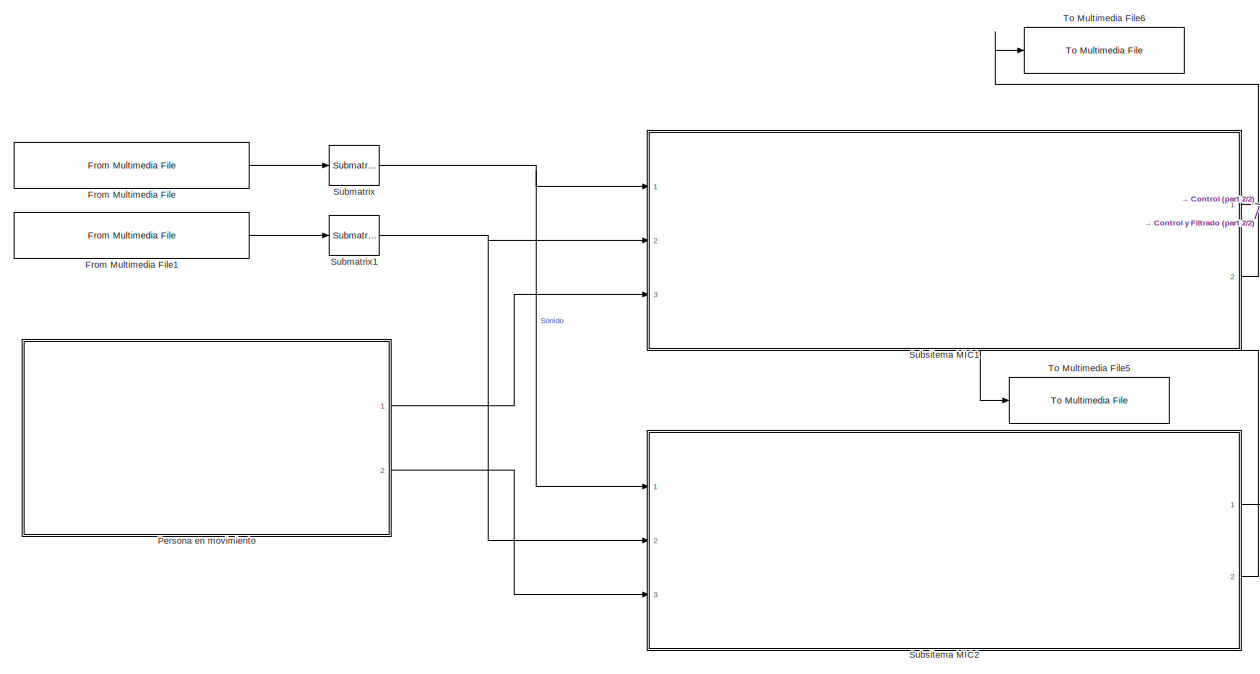
[diagram: root canvas - part 1/2, left side, full height]
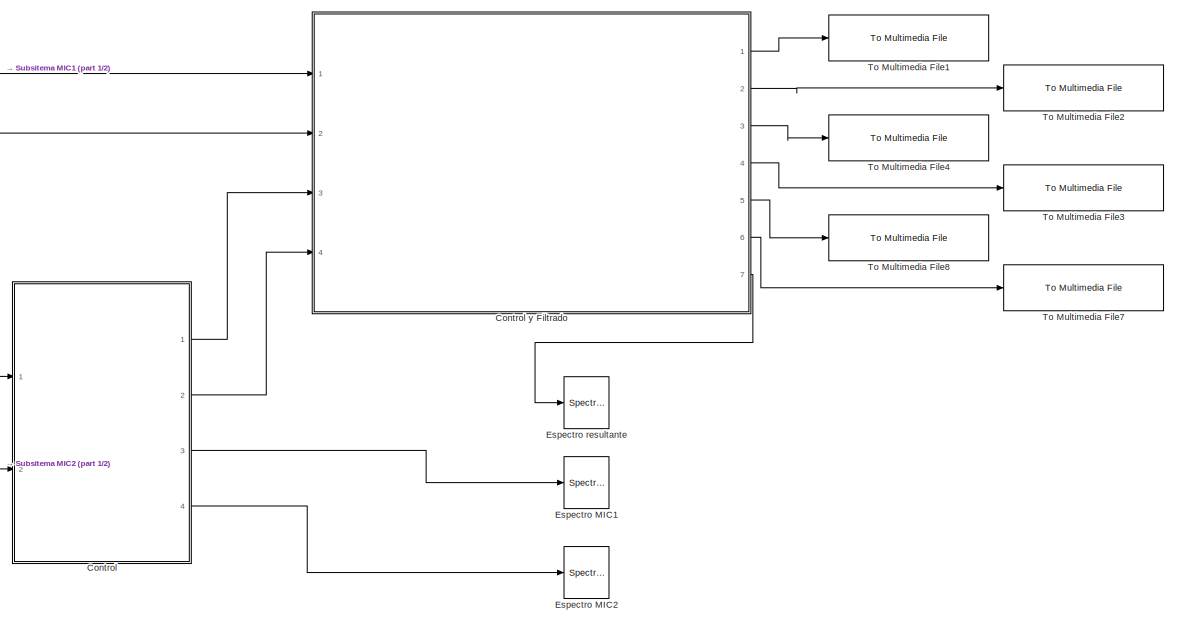
[diagram: root canvas - part 2/2, right side, full height]
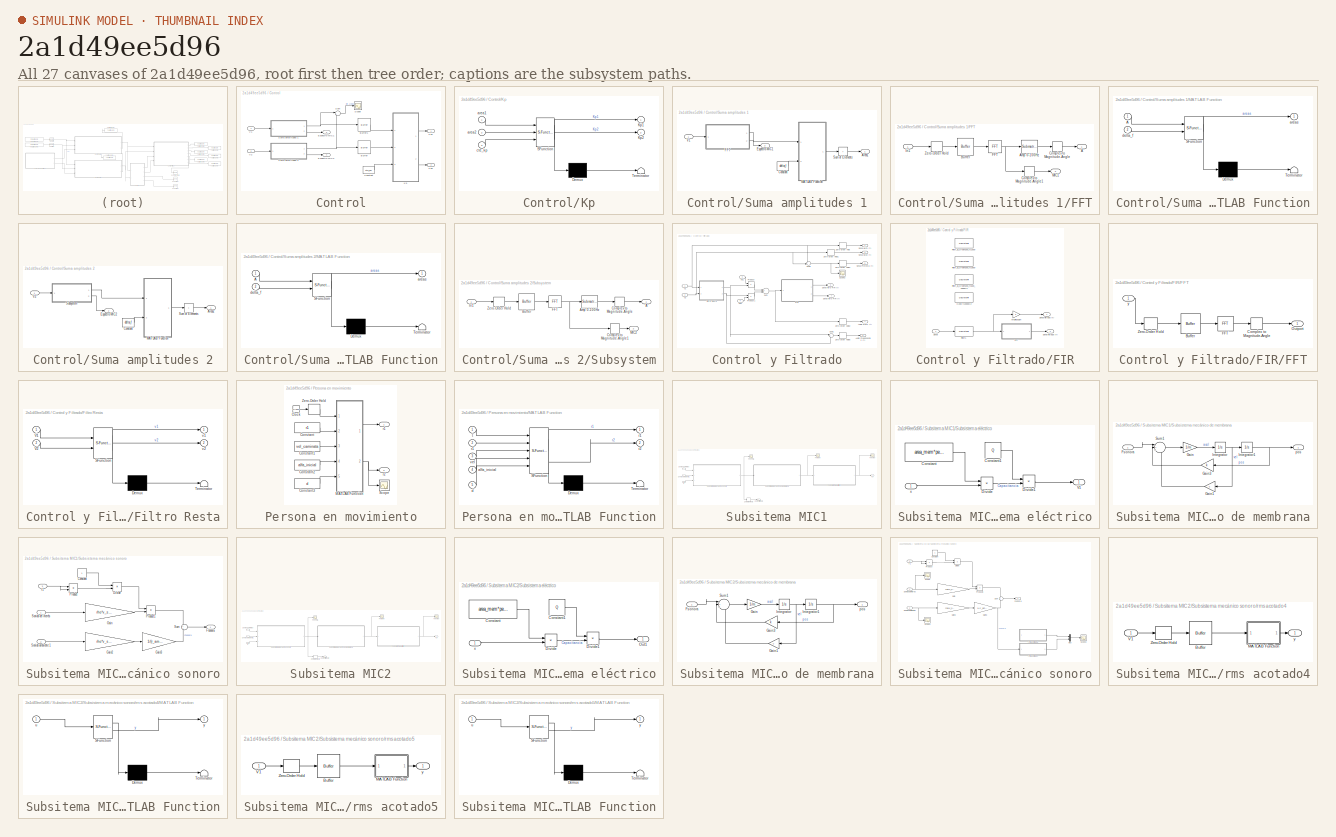
[diagram: thumbnail index - all 27 canvases of the model, root first then tree order]
MODEL slx_2a1d49ee5d96
KIND model
CONFIG AbsTol = auto
CONFIG EnableMultiTasking = off
CONFIG FixedStep = auto
CONFIG MaxStep = auto
CONFIG MinStep = auto
CONFIG RelTol = auto
CONFIG SampleTimeConstraint = Unconstrained
CONFIG Solver = VariableStepAuto
CONFIG SolverName = VariableStepAuto
CONFIG StartTime = 0.0
CONFIG StopTime = 3
BLOCK [SubSystem] Control
  Ports = [2, 4]
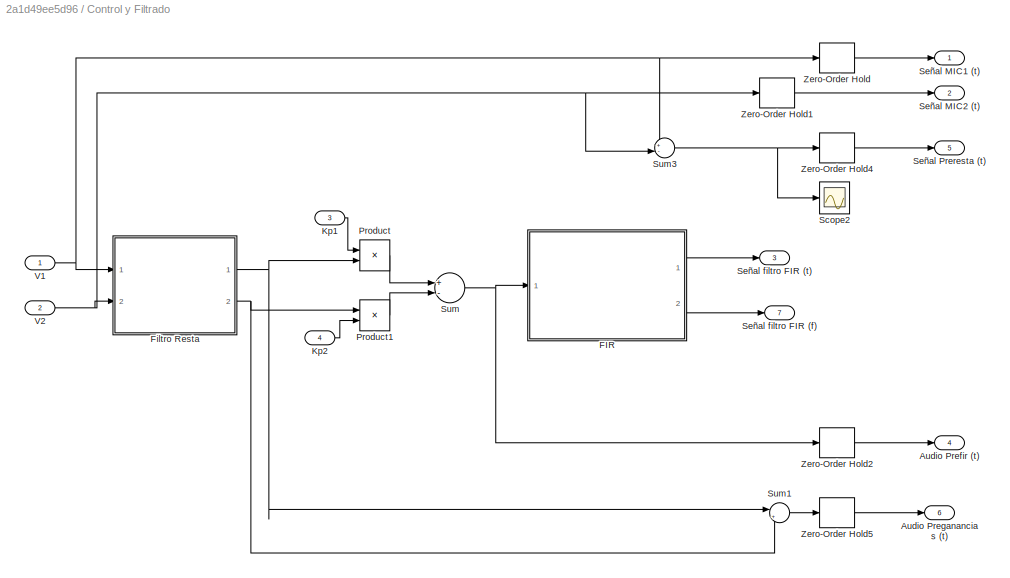
BLOCK [SubSystem] Control y Filtrado
  Ports = [4, 7]
BLOCK [Outport] Control y Filtrado/Audio Prefir (t)
  Port = 4
BLOCK [Outport] Control y Filtrado/Audio Preganancias (t)
  Port = 6
BLOCK [SubSystem] Control y Filtrado/FIR
  Ports = [1, 2]
BLOCK [Gain] Control y Filtrado/FIR/Amplificación
  Gain = 5
BLOCK [SubSystem] Control y Filtrado/FIR/FFT
  Ports = [1, 1]
BLOCK [Buffer] Control y Filtrado/FIR/FFT/Buffer
  N = 4410
  OutputFrames = off
BLOCK [ComplexToMagnitudeAngle] Control y Filtrado/FIR/FFT/Complex to Magnitude-Angle
  Output = Magnitude
  Ports = [1, 1]
BLOCK [Reference] Control y Filtrado/FIR/FFT/FFT  REF=dspxfrm3/FFT
  Ports = [1, 1]
  SourceBlock = dspxfrm3/FFT
  SourceType = FFT
BLOCK [Outport] Control y Filtrado/FIR/FFT/Outport
BLOCK [ZeroOrderHold] Control y Filtrado/FIR/FFT/Zero-Order Hold
  SampleTime = zoh_freq
BLOCK [Inport] Control y Filtrado/FIR/FFT/y
BLOCK [DiscreteFir] Control y Filtrado/FIR/Filter1
  Coefficients = [0 -2.46968087486229999e-06 -3.07570330301983584e-05 -0.000118398297516965302 -0.000298367075036484037 -0.000596227803309950849 -0.00102003077952711506 -0.00154756625881359144 -0.00211289076768585247 -0.00259518747306043901 -0.00281365562212182018 -0.00253195194747434741 -0.00147460264563965674 0.00064414461322387991 0.00408104805501018075 0.00901875177176652762 0.0155214581908035953 0.02349910102...<+745ch>
  InputPortMap = u0
  OutputPortMap = o0
  Ports = [1, 1]
  Tag = BlockMethodSubSystem
BLOCK [DiscreteFir] Control y Filtrado/FIR/Filter_B_Orden200_fc1500
  Coefficients = [0 2.11514125222930549e-07 1.00093934765138096e-06 2.50662436979156886e-06 4.71763254290821587e-06 7.45535130819729324e-06 1.03710140877794857e-05 1.2960590087806268e-05 1.45973519410186672e-05 1.45811762675124996e-05 1.22023273134778345e-05 6.81618827244323951e-06 -2.07578339154207704e-06 -1.47446077930910027e-05 -3.11583144423782112e-05 -5.09193211148811369e-05 -7.32215020803920553e-05 -9.683328...<+4311ch>
  InputPortMap = u0
  OutputPortMap = o0
  Ports = [1, 1]
  Tag = BlockMethodSubSystem
BLOCK [DiscreteFir] Control y Filtrado/FIR/Filter_B_Orden200_fc1800
  Coefficients = [0 2.11514125222930549e-07 1.00093934765138096e-06 2.50662436979156886e-06 4.71763254290821587e-06 7.45535130819729324e-06 1.03710140877794857e-05 1.2960590087806268e-05 1.45973519410186672e-05 1.45811762675124996e-05 1.22023273134778345e-05 6.81618827244323951e-06 -2.07578339154207704e-06 -1.47446077930910027e-05 -3.11583144423782112e-05 -5.09193211148811369e-05 -7.32215020803920553e-05 -9.683328...<+4311ch>
  InputPortMap = u0
  OutputPortMap = o0
  Ports = [1, 1]
  Tag = BlockMethodSubSystem
BLOCK [DiscreteFir] Control y Filtrado/FIR/Filter_B_Orden200_fc500_1600Hz
  Coefficients = [0 -3.55324752461809841e-07 -1.14041164662054229e-06 -1.86555151808696453e-06 -1.99844780883798536e-06 -1.03117503681064552e-06 1.45062710751347741e-06 5.70289528973608542e-06 1.17693159029814948e-05 1.94448656927964283e-05 2.82621895124256615e-05 3.75049240470417836e-05 4.62502611344708104e-05 5.34408510414543662e-05 5.79836863954314837e-05 5.88710269009623936e-05 5.53158980566520483e-05 4.689241...<+4287ch>
  InputPortMap = u0
  OutputPortMap = o0
  Ports = [1, 1]
  Tag = BlockMethodSubSystem
BLOCK [DiscreteFir] Control y Filtrado/FIR/H200 fc2000Hz
  Coefficients = [-5.56928887965323996e-05 1.65011438245537004e-05 8.97404129389855278e-05 0.000159235323802665862 0.00022009162972417537 0.000267507778546905491 0.000297028076662561244 0.00030485366062257119 0.000288200030555739591 0.000245675511305965986 0.000177641669329940406 8.6506699720296273e-05 -2.31018469780051173e-05 -0.00014433637834937926 -0.000268342086729793134 -0.000384707364236210015 -0.00048215215...<+4331ch>
  InputPortMap = u0
  OutputPortMap = o0
  Ports = [1, 1]
  Tag = BlockMethodSubSystem
BLOCK [Inport] Control y Filtrado/FIR/Señal
BLOCK [Outport] Control y Filtrado/FIR/Señal filtrada (f)
  Port = 2
BLOCK [Outport] Control y Filtrado/FIR/Señal filtrada (t)
BLOCK [SubSystem] Control y Filtrado/Filtro Resta
  ErrorFcn = Stateflow.Translate.translate
  PermitHierarchicalResolution = ExplicitOnly
  Ports = [2, 2]
  SFBlockType = MATLAB Function
  TreatAsAtomicUnit = on
BLOCK [Demux] Control y Filtrado/Filtro Resta/ Demux 
  Outputs = 1
  Ports = [1, 1]
BLOCK [S-Function] Control y Filtrado/Filtro Resta/ SFunction 
  EnableBusSupport = on
  FunctionName = sf_sfun
  PortCounts = [2 3]
  Ports = [2, 3]
  SFcnIsStateOwnerBlock = off
  SFunctionDeploymentMode = off
  Tag = Stateflow S-Function Proyecto_R2018a 1
BLOCK [Terminator] Control y Filtrado/Filtro Resta/ Terminator 
BLOCK [Inport] Control y Filtrado/Filtro Resta/V1
BLOCK [Inport] Control y Filtrado/Filtro Resta/V2
  Port = 2
BLOCK [Outport] Control y Filtrado/Filtro Resta/v1
BLOCK [Outport] Control y Filtrado/Filtro Resta/v2
  Port = 2
BLOCK [Inport] Control y Filtrado/Kp1
  Port = 3
BLOCK [Inport] Control y Filtrado/Kp2
  Port = 4
BLOCK [Product] Control y Filtrado/Product
  Ports = [2, 1]
BLOCK [Product] Control y Filtrado/Product1
  Ports = [2, 1]
BLOCK [Scope] Control y Filtrado/Scope2
  Floating = off
  NumInputPorts = 1
  Ports = [1]
  ScopeSpecificationString = Simulink.scopes.TimeScopeBlockCfg('CurrentConfiguration', extmgr.ConfigurationSet(extmgr.Configuration('Core','General UI',true),extmgr.Configuration('Core','Source UI',true),extmgr.Configuration('Sources','WiredSimulink',true,'DataLoggingVariableName','ScopeData1'),extmgr.Configuration('Visuals','Time Domain',true,'SerializedDisplays',{struct('MinYLimReal','-0.78692','MaxYLimReal','0.80622','YLab...<+1423ch>
BLOCK [Outport] Control y Filtrado/Señal MIC1 (t)
BLOCK [Outport] Control y Filtrado/Señal MIC2 (t)
  Port = 2
BLOCK [Outport] Control y Filtrado/Señal Preresta (t)
  Port = 5
BLOCK [Outport] Control y Filtrado/Señal filtro FIR (f)
  Port = 7
BLOCK [Outport] Control y Filtrado/Señal filtro FIR (t)
  Port = 3
BLOCK [Sum] Control y Filtrado/Sum
  Inputs = +-
  Ports = [2, 1]
BLOCK [Sum] Control y Filtrado/Sum1
  Inputs = |+-
  Ports = [2, 1]
BLOCK [Sum] Control y Filtrado/Sum3
  Inputs = +-|
  Ports = [2, 1]
BLOCK [Inport] Control y Filtrado/V1
BLOCK [Inport] Control y Filtrado/V2
  Port = 2
BLOCK [ZeroOrderHold] Control y Filtrado/Zero-Order Hold
  SampleTime = 1/fs
BLOCK [ZeroOrderHold] Control y Filtrado/Zero-Order Hold1
  SampleTime = 1/fs
BLOCK [ZeroOrderHold] Control y Filtrado/Zero-Order Hold2
  SampleTime = 1/fs
BLOCK [ZeroOrderHold] Control y Filtrado/Zero-Order Hold4
  SampleTime = 1/44100
BLOCK [ZeroOrderHold] Control y Filtrado/Zero-Order Hold5
  SampleTime = 1/fs
BLOCK [Buffer] Control/Buffer
  N = 10
  OutputFrames = off
  V = 9
BLOCK [Buffer] Control/Buffer1
  N = 10
  OutputFrames = off
  V = 9
BLOCK [Constant] Control/Constant
  Value = cte_kp
BLOCK [Outport] Control/Espectro MIC1
  Port = 3
BLOCK [Outport] Control/Espectro MIC2
  Port = 4
BLOCK [SubSystem] Control/Kp
  ErrorFcn = Stateflow.Translate.translate
  PermitHierarchicalResolution = ExplicitOnly
  Ports = [3, 2]
  SFBlockType = MATLAB Function
  TreatAsAtomicUnit = on
BLOCK [Demux] Control/Kp/ Demux 
  Outputs = 1
  Ports = [1, 1]
BLOCK [S-Function] Control/Kp/ SFunction 
  EnableBusSupport = on
  FunctionName = sf_sfun
  PortCounts = [3 3]
  Ports = [3, 3]
  SFcnIsStateOwnerBlock = off
  SFunctionDeploymentMode = off
  Tag = Stateflow S-Function Proyecto_R2018a 11
BLOCK [Terminator] Control/Kp/ Terminator 
BLOCK [Outport] Control/Kp/Kp1
BLOCK [Outport] Control/Kp/Kp2
  Port = 2
BLOCK [Inport] Control/Kp/area1
BLOCK [Inport] Control/Kp/area2
  Port = 2
BLOCK [Inport] Control/Kp/cte_kp
  Port = 3
BLOCK [Outport] Control/Kp1
BLOCK [Outport] Control/Kp2
  Port = 2
BLOCK [Scope] Control/Scope
  Floating = off
  NumInputPorts = 1
  Ports = [1]
  ScopeSpecificationString = Simulink.scopes.TimeScopeBlockCfg('CurrentConfiguration', extmgr.ConfigurationSet(extmgr.Configuration('Core','General UI',true),extmgr.Configuration('Core','Source UI',true),extmgr.Configuration('Sources','WiredSimulink',true,'DataLoggingVariableName','ScopeData2'),extmgr.Configuration('Visuals','Time Domain',true,'SerializedDisplays',{struct('MinYLimReal','-1439.47469','MaxYLimReal','404.61958',...<+1455ch>
BLOCK [Sum] Control/Sum
  Inputs = |+-
  Ports = [2, 1]
BLOCK [SubSystem] Control/Suma amplitudes 1
  Ports = [1, 2]
BLOCK [Outport] Control/Suma amplitudes 1/Area1
BLOCK [Constant] Control/Suma amplitudes 1/Constant
  Value = delta_f
BLOCK [Outport] Control/Suma amplitudes 1/Espectro MIC1
  Port = 2
BLOCK [SubSystem] Control/Suma amplitudes 1/FFT
  Ports = [1, 2]
BLOCK [Outport] Control/Suma amplitudes 1/FFT/A
BLOCK [Reference] Control/Suma amplitudes 1/FFT/Amp 0-100Hz  REF=dspmtrx3/Submatrix
  Ports = [1, 1]
  SourceBlock = dspmtrx3/Submatrix
  SourceType = Submatrix
BLOCK [Buffer] Control/Suma amplitudes 1/FFT/Buffer
  N = ventana_fft
  OutputFrames = off
  V = ventana_fft_analisis-1
BLOCK [ComplexToMagnitudeAngle] Control/Suma amplitudes 1/FFT/Complex to Magnitude-Angle
  Output = Magnitude
  Ports = [1, 1]
BLOCK [ComplexToMagnitudeAngle] Control/Suma amplitudes 1/FFT/Complex to Magnitude-Angle1
  Output = Magnitude
  Ports = [1, 1]
BLOCK [Reference] Control/Suma amplitudes 1/FFT/FFT  REF=dspxfrm3/FFT
  Ports = [1, 1]
  SourceBlock = dspxfrm3/FFT
  SourceType = FFT
BLOCK [Inport] Control/Suma amplitudes 1/FFT/In1
BLOCK [Outport] Control/Suma amplitudes 1/FFT/MIC1
  Port = 2
BLOCK [ZeroOrderHold] Control/Suma amplitudes 1/FFT/Zero-Order Hold
  SampleTime = zoh_freq
BLOCK [SubSystem] Control/Suma amplitudes 1/MATLAB Function
  ErrorFcn = Stateflow.Translate.translate
  PermitHierarchicalResolution = ExplicitOnly
  Ports = [2, 1]
  SFBlockType = MATLAB Function
  TreatAsAtomicUnit = on
BLOCK [Demux] Control/Suma amplitudes 1/MATLAB Function/ Demux 
  Outputs = 1
  Ports = [1, 1]
BLOCK [S-Function] Control/Suma amplitudes 1/MATLAB Function/ SFunction 
  EnableBusSupport = on
  FunctionName = sf_sfun
  PortCounts = [2 2]
  Ports = [2, 2]
  SFcnIsStateOwnerBlock = off
  SFunctionDeploymentMode = off
  Tag = Stateflow S-Function Proyecto_R2018a 15
BLOCK [Terminator] Control/Suma amplitudes 1/MATLAB Function/ Terminator 
BLOCK [Inport] Control/Suma amplitudes 1/MATLAB Function/A
BLOCK [Outport] Control/Suma amplitudes 1/MATLAB Function/areas
BLOCK [Inport] Control/Suma amplitudes 1/MATLAB Function/delta_f
  Port = 2
BLOCK [Sum] Control/Suma amplitudes 1/Sum of Elements
  IconShape = rectangular
  Inputs = +
  Ports = [1, 1]
BLOCK [Inport] Control/Suma amplitudes 1/V1
BLOCK [SubSystem] Control/Suma amplitudes 2
  Ports = [1, 2]
BLOCK [Outport] Control/Suma amplitudes 2/Area2
BLOCK [Constant] Control/Suma amplitudes 2/Constant
  Value = delta_f
BLOCK [Outport] Control/Suma amplitudes 2/Espectro MIC2
  Port = 2
BLOCK [SubSystem] Control/Suma amplitudes 2/MATLAB Function
  ErrorFcn = Stateflow.Translate.translate
  PermitHierarchicalResolution = ExplicitOnly
  Ports = [2, 1]
  SFBlockType = MATLAB Function
  TreatAsAtomicUnit = on
BLOCK [Demux] Control/Suma amplitudes 2/MATLAB Function/ Demux 
  Outputs = 1
  Ports = [1, 1]
BLOCK [S-Function] Control/Suma amplitudes 2/MATLAB Function/ SFunction 
  EnableBusSupport = on
  FunctionName = sf_sfun
  PortCounts = [2 2]
  Ports = [2, 2]
  SFcnIsStateOwnerBlock = off
  SFunctionDeploymentMode = off
  Tag = Stateflow S-Function Proyecto_R2018a 16
BLOCK [Terminator] Control/Suma amplitudes 2/MATLAB Function/ Terminator 
BLOCK [Inport] Control/Suma amplitudes 2/MATLAB Function/A
BLOCK [Outport] Control/Suma amplitudes 2/MATLAB Function/areas
BLOCK [Inport] Control/Suma amplitudes 2/MATLAB Function/delta_f
  Port = 2
BLOCK [SubSystem] Control/Suma amplitudes 2/Subsystem
  Ports = [1, 2]
BLOCK [Outport] Control/Suma amplitudes 2/Subsystem/A
BLOCK [Reference] Control/Suma amplitudes 2/Subsystem/Amp 0-100Hz  REF=dspmtrx3/Submatrix
  Ports = [1, 1]
  SourceBlock = dspmtrx3/Submatrix
  SourceType = Submatrix
BLOCK [Buffer] Control/Suma amplitudes 2/Subsystem/Buffer
  N = ventana_fft
  OutputFrames = off
  V = ventana_fft_analisis-1
BLOCK [ComplexToMagnitudeAngle] Control/Suma amplitudes 2/Subsystem/Complex to Magnitude-Angle
  Output = Magnitude
  Ports = [1, 1]
BLOCK [ComplexToMagnitudeAngle] Control/Suma amplitudes 2/Subsystem/Complex to Magnitude-Angle1
  Output = Magnitude
  Ports = [1, 1]
BLOCK [Reference] Control/Suma amplitudes 2/Subsystem/FFT  REF=dspxfrm3/FFT
  Ports = [1, 1]
  SourceBlock = dspxfrm3/FFT
  SourceType = FFT
BLOCK [Inport] Control/Suma amplitudes 2/Subsystem/In1
BLOCK [Outport] Control/Suma amplitudes 2/Subsystem/MIC2
  Port = 2
BLOCK [ZeroOrderHold] Control/Suma amplitudes 2/Subsystem/Zero-Order Hold
  SampleTime = zoh_freq
BLOCK [Sum] Control/Suma amplitudes 2/Sum of Elements
  IconShape = rectangular
  Inputs = +
  Ports = [1, 1]
BLOCK [Inport] Control/Suma amplitudes 2/V2
BLOCK [Inport] Control/V1
BLOCK [Inport] Control/V2
  Port = 2
BLOCK [SpectrumAnalyzer] Espectro MIC1
  DefaultConfigurationName = spbscopes.SpectrumAnalyzerBlockCfg
  Ports = [1]
  ScopeSpecificationString = spbscopes.SpectrumAnalyzerBlockCfg('CurrentConfiguration', extmgr.ConfigurationSet(extmgr.Configuration('Core','General UI',true,'FigureColor',[1  1  1]),extmgr.Configuration('Visuals','Spectrum',true,'Title','','YLabel','','MinYLim','-1','MaxYLim','1','Legend',false,'AxesProperties',struct('XGrid',{'on','on'},'YGrid',{'on','on'},'ZGrid',{'on','on'},'Color',{[1  1  1],[1  1  1]},'XColor',{[0  0  0...<+2213ch>
BLOCK [SpectrumAnalyzer] Espectro MIC2
  DefaultConfigurationName = spbscopes.SpectrumAnalyzerBlockCfg
  Ports = [1]
  ScopeSpecificationString = spbscopes.SpectrumAnalyzerBlockCfg('CurrentConfiguration', extmgr.ConfigurationSet(extmgr.Configuration('Core','General UI',true,'FigureColor',[1  1  1]),extmgr.Configuration('Visuals','Spectrum',true,'Title','','YLabel','','MinYLim','-1','MaxYLim','1','Legend',false,'AxesProperties',struct('XGrid',{'on','on'},'YGrid',{'on','on'},'ZGrid',{'on','on'},'Color',{[1  1  1],[1  1  1]},'XColor',{[0  0  0...<+2196ch>
BLOCK [SpectrumAnalyzer] Espectro resultante
  DefaultConfigurationName = spbscopes.SpectrumAnalyzerBlockCfg
  Ports = [1]
  ScopeSpecificationString = spbscopes.SpectrumAnalyzerBlockCfg('CurrentConfiguration', extmgr.ConfigurationSet(extmgr.Configuration('Core','General UI',true,'FigureColor',[1  1  1]),extmgr.Configuration('Visuals','Spectrum',true,'Title','','YLabel','','MinYLim','-1','MaxYLim','1','Legend',false,'AxesProperties',struct('XGrid',{'on','on'},'YGrid',{'on','on'},'ZGrid',{'on','on'},'Color',{[1  1  1],[1  1  1]},'XColor',{[0  0  0...<+2198ch>
BLOCK [Reference] From Multimedia File  REF=dspvision/From Multimedia File
  Ports = [0, 1]
  SourceBlock = dspvision/From Multimedia File
  SourceType = From Multimedia File
BLOCK [Reference] From Multimedia File1  REF=dspvision/From Multimedia File
  Ports = [0, 1]
  SourceBlock = dspvision/From Multimedia File
  SourceType = From Multimedia File
BLOCK [SubSystem] Persona en movimiento
  Ports = [0, 2]
BLOCK [Clock] Persona en movimiento/Clock
  Decimation = 1
BLOCK [Constant] Persona en movimiento/Constant
  Value = r1
BLOCK [Constant] Persona en movimiento/Constant1
  Value = vel_caminata
BLOCK [Constant] Persona en movimiento/Constant2
  Value = alfa_inicial
BLOCK [Constant] Persona en movimiento/Constant3
  Value = d
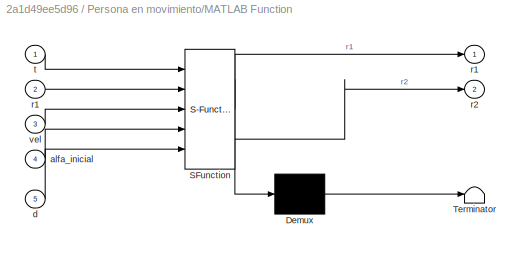
BLOCK [SubSystem] Persona en movimiento/MATLAB Function
  ErrorFcn = Stateflow.Translate.translate
  PermitHierarchicalResolution = ExplicitOnly
  Ports = [5, 2]
  SFBlockType = MATLAB Function
  TreatAsAtomicUnit = on
BLOCK [Demux] Persona en movimiento/MATLAB Function/ Demux 
  Outputs = 1
  Ports = [1, 1]
BLOCK [S-Function] Persona en movimiento/MATLAB Function/ SFunction 
  EnableBusSupport = on
  FunctionName = sf_sfun
  PortCounts = [5 3]
  Ports = [5, 3]
  SFcnIsStateOwnerBlock = off
  SFunctionDeploymentMode = off
  Tag = Stateflow S-Function Proyecto_R2018a 5
BLOCK [Terminator] Persona en movimiento/MATLAB Function/ Terminator 
BLOCK [Inport] Persona en movimiento/MATLAB Function/alfa_inicial
  Port = 4
BLOCK [Inport] Persona en movimiento/MATLAB Function/d
  Port = 5
BLOCK [Outport] Persona en movimiento/MATLAB Function/r1
BLOCK [Inport] Persona en movimiento/MATLAB Function/r1 
  Port = 2
BLOCK [Outport] Persona en movimiento/MATLAB Function/r2
  Port = 2
BLOCK [Inport] Persona en movimiento/MATLAB Function/t
BLOCK [Inport] Persona en movimiento/MATLAB Function/vel
  Port = 3
BLOCK [Scope] Persona en movimiento/Scope
  Floating = off
  NumInputPorts = 1
  Ports = [1]
  ScopeSpecificationString = Simulink.scopes.TimeScopeBlockCfg('CurrentConfiguration', extmgr.ConfigurationSet(extmgr.Configuration('Core','General UI',true),extmgr.Configuration('Core','Source UI',true),extmgr.Configuration('Sources','WiredSimulink',true,'DataLoggingVariableName','ScopeData3'),extmgr.Configuration('Visuals','Time Domain',true,'SerializedDisplays',{struct('MinYLimReal','0.41007','MaxYLimReal','0.60999','YLabe...<+1408ch>
BLOCK [ZeroOrderHold] Persona en movimiento/Zero-Order Hold
  SampleTime = 0.1
BLOCK [Outport] Persona en movimiento/r1
BLOCK [Outport] Persona en movimiento/r2
  Port = 2
BLOCK [Reference] Submatrix  REF=dspmtrx3/Submatrix
  Ports = [1, 1]
  SourceBlock = dspmtrx3/Submatrix
  SourceType = Submatrix
BLOCK [Reference] Submatrix1  REF=dspmtrx3/Submatrix
  Ports = [1, 1]
  SourceBlock = dspmtrx3/Submatrix
  SourceType = Submatrix
BLOCK [SubSystem] Subsitema MIC1
  Ports = [3, 2]
BLOCK [Outport] Subsitema MIC1/Audio Original 1
  Port = 2
BLOCK [Scope] Subsitema MIC1/Fsonora
  Floating = off
  NumInputPorts = 1
  Ports = [1]
  ScopeSpecificationString = Simulink.scopes.TimeScopeBlockCfg('CurrentConfiguration', extmgr.ConfigurationSet(extmgr.Configuration('Core','General UI',true),extmgr.Configuration('Core','Source UI',true),extmgr.Configuration('Sources','WiredSimulink',true),extmgr.Configuration('Visuals','Time Domain',true,'SerializedDisplays',{struct('MinYLimReal','-0.00023','MaxYLimReal','0.0003','YLabelReal','','MinYLimMag','0.00000','MaxYL...<+1397ch>
BLOCK [Scope] Subsitema MIC1/Posición
  Floating = off
  NumInputPorts = 1
  Ports = [1]
  ScopeSpecificationString = Simulink.scopes.TimeScopeBlockCfg('CurrentConfiguration', extmgr.ConfigurationSet(extmgr.Configuration('Core','General UI',true),extmgr.Configuration('Core','Source UI',true),extmgr.Configuration('Sources','WiredSimulink',true,'DataLoggingVariableName','ScopeData3'),extmgr.Configuration('Visuals','Time Domain',true,'SerializedDisplays',{struct('MinYLimReal','-0.000011','MaxYLimReal','0.000011','YL...<+1398ch>
BLOCK [Inport] Subsitema MIC1/Sonido ambiente 1
  Port = 2
BLOCK [Inport] Subsitema MIC1/Sonido de interes
BLOCK [SubSystem] Subsitema MIC1/Subsistema eléctrico
  Ports = [1, 1]
BLOCK [Constant] Subsitema MIC1/Subsistema eléctrico/Constant
  Value = area_mem*perm
BLOCK [Constant] Subsitema MIC1/Subsistema eléctrico/Constant1
  Value = Q
BLOCK [Product] Subsitema MIC1/Subsistema eléctrico/Divide
  Inputs = */
  Ports = [2, 1]
BLOCK [Product] Subsitema MIC1/Subsistema eléctrico/Divide1
  Inputs = */
  Ports = [2, 1]
BLOCK [Outport] Subsitema MIC1/Subsistema eléctrico/V1
BLOCK [Inport] Subsitema MIC1/Subsistema eléctrico/x
BLOCK [SubSystem] Subsitema MIC1/Subsistema mecánico de membrana
  Ports = [1, 1]
BLOCK [Inport] Subsitema MIC1/Subsistema mecánico de membrana/Fsonora
BLOCK [Gain] Subsitema MIC1/Subsistema mecánico de membrana/Gain
  Gain = 1/m
BLOCK [Gain] Subsitema MIC1/Subsistema mecánico de membrana/Gain1
  Gain = c
BLOCK [Gain] Subsitema MIC1/Subsistema mecánico de membrana/Gain3
  Gain = k
BLOCK [Integrator] Subsitema MIC1/Subsistema mecánico de membrana/Integrator
  Ports = [1, 1]
BLOCK [Integrator] Subsitema MIC1/Subsistema mecánico de membrana/Integrator1
  Ports = [1, 1]
BLOCK [Sum] Subsitema MIC1/Subsistema mecánico de membrana/Sum1
  Inputs = |+--
  Ports = [3, 1]
BLOCK [Outport] Subsitema MIC1/Subsistema mecánico de membrana/pos
BLOCK [SubSystem] Subsitema MIC1/Subsistema mecánico sonoro
  Ports = [3, 1]
BLOCK [Constant] Subsitema MIC1/Subsistema mecánico sonoro/Constant
BLOCK [Product] Subsitema MIC1/Subsistema mecánico sonoro/Divide
  Inputs = */
  Ports = [2, 1]
BLOCK [Outport] Subsitema MIC1/Subsistema mecánico sonoro/Fsonora
BLOCK [Gain] Subsitema MIC1/Subsistema mecánico sonoro/Gain
  Gain = rho*v_sonido*(area_mem)
BLOCK [Gain] Subsitema MIC1/Subsistema mecánico sonoro/Gain2
  Gain = rho*v_sonido*(area_mem)
BLOCK [Gain] Subsitema MIC1/Subsistema mecánico sonoro/Gain3
  Gain = 1/(r_ambiente1^2)
BLOCK [Product] Subsitema MIC1/Subsistema mecánico sonoro/Product
  Ports = [2, 1]
BLOCK [Product] Subsitema MIC1/Subsistema mecánico sonoro/Product1
  Ports = [2, 1]
BLOCK [Inport] Subsitema MIC1/Subsistema mecánico sonoro/Sonido ambiente 1
  Port = 2
BLOCK [Inport] Subsitema MIC1/Subsistema mecánico sonoro/Sonido de interés
BLOCK [Sum] Subsitema MIC1/Subsistema mecánico sonoro/Sum
  Ports = [2, 1]
BLOCK [Inport] Subsitema MIC1/Subsistema mecánico sonoro/r1
  Port = 3
BLOCK [Scope] Subsitema MIC1/Tensión
  Floating = off
  NumInputPorts = 1
  Ports = [1]
  ScopeSpecificationString = Simulink.scopes.TimeScopeBlockCfg('CurrentConfiguration', extmgr.ConfigurationSet(extmgr.Configuration('Core','General UI',true),extmgr.Configuration('Core','Source UI',true),extmgr.Configuration('Sources','WiredSimulink',true,'DataLoggingVariableName','ScopeData1'),extmgr.Configuration('Visuals','Time Domain',true,'SerializedDisplays',{struct('MinYLimReal','-2.47683','MaxYLimReal','2.43758','YLab...<+1379ch>
BLOCK [Outport] Subsitema MIC1/V1
BLOCK [ZeroOrderHold] Subsitema MIC1/Zero-Order Hold
  SampleTime = 1/fs
BLOCK [Inport] Subsitema MIC1/r1
  Port = 3
BLOCK [SubSystem] Subsitema MIC2
  Ports = [3, 2]
BLOCK [Outport] Subsitema MIC2/Audio Original 2
  Port = 2
BLOCK [Scope] Subsitema MIC2/Fsonora
  Floating = off
  NumInputPorts = 1
  Ports = [1]
  ScopeSpecificationString = Simulink.scopes.TimeScopeBlockCfg('CurrentConfiguration', extmgr.ConfigurationSet(extmgr.Configuration('Core','General UI',true),extmgr.Configuration('Core','Source UI',true),extmgr.Configuration('Sources','WiredSimulink',true),extmgr.Configuration('Visuals','Time Domain',true,'SerializedDisplays',{struct('MinYLimReal','-0.00023','MaxYLimReal','0.0003','YLabelReal','','MinYLimMag','0.00000','MaxYL...<+1397ch>
BLOCK [Scope] Subsitema MIC2/Posición
  Floating = off
  NumInputPorts = 1
  Ports = [1]
  ScopeSpecificationString = Simulink.scopes.TimeScopeBlockCfg('CurrentConfiguration', extmgr.ConfigurationSet(extmgr.Configuration('Core','General UI',true),extmgr.Configuration('Core','Source UI',true),extmgr.Configuration('Sources','WiredSimulink',true,'DataLoggingVariableName','ScopeData3'),extmgr.Configuration('Visuals','Time Domain',true,'SerializedDisplays',{struct('MinYLimReal','-0.000011','MaxYLimReal','0.000011','YL...<+1398ch>
BLOCK [Inport] Subsitema MIC2/Sonido ambiente 1
  Port = 2
BLOCK [Inport] Subsitema MIC2/Sonido de interes
BLOCK [SubSystem] Subsitema MIC2/Subsistema eléctrico
  Ports = [1, 1]
BLOCK [Constant] Subsitema MIC2/Subsistema eléctrico/Constant
  Value = area_mem*perm
BLOCK [Constant] Subsitema MIC2/Subsistema eléctrico/Constant1
  Value = Q
BLOCK [Product] Subsitema MIC2/Subsistema eléctrico/Divide
  Inputs = */
  Ports = [2, 1]
BLOCK [Product] Subsitema MIC2/Subsistema eléctrico/Divide1
  Inputs = */
  Ports = [2, 1]
BLOCK [Outport] Subsitema MIC2/Subsistema eléctrico/Out1
BLOCK [Inport] Subsitema MIC2/Subsistema eléctrico/x
BLOCK [SubSystem] Subsitema MIC2/Subsistema mecánico de membrana
  Ports = [1, 1]
BLOCK [Inport] Subsitema MIC2/Subsistema mecánico de membrana/Fsonora
BLOCK [Gain] Subsitema MIC2/Subsistema mecánico de membrana/Gain
  Gain = 1/m
BLOCK [Gain] Subsitema MIC2/Subsistema mecánico de membrana/Gain1
  Gain = c
BLOCK [Gain] Subsitema MIC2/Subsistema mecánico de membrana/Gain3
  Gain = k
BLOCK [Integrator] Subsitema MIC2/Subsistema mecánico de membrana/Integrator
  Ports = [1, 1]
BLOCK [Integrator] Subsitema MIC2/Subsistema mecánico de membrana/Integrator1
  Ports = [1, 1]
BLOCK [Sum] Subsitema MIC2/Subsistema mecánico de membrana/Sum1
  Inputs = |+--
  Ports = [3, 1]
BLOCK [Outport] Subsitema MIC2/Subsistema mecánico de membrana/pos
BLOCK [SubSystem] Subsitema MIC2/Subsistema mecánico sonoro
  Ports = [3, 1]
BLOCK [Constant] Subsitema MIC2/Subsistema mecánico sonoro/Constant
BLOCK [Product] Subsitema MIC2/Subsistema mecánico sonoro/Divide
  Inputs = */
  Ports = [2, 1]
BLOCK [Outport] Subsitema MIC2/Subsistema mecánico sonoro/Fsonora
BLOCK [Gain] Subsitema MIC2/Subsistema mecánico sonoro/Gain
  Gain = rho*v_sonido*(area_mem)
BLOCK [Gain] Subsitema MIC2/Subsistema mecánico sonoro/Gain2
  Gain = rho*v_sonido*(area_mem)
BLOCK [Gain] Subsitema MIC2/Subsistema mecánico sonoro/Gain3
  Gain = 1/(r_ambiente2^2)
BLOCK [Mux] Subsitema MIC2/Subsistema mecánico sonoro/Mux
  DisplayOption = bar
  Inputs = 2
  Ports = [2, 1]
BLOCK [Product] Subsitema MIC2/Subsistema mecánico sonoro/Product
  Ports = [2, 1]
BLOCK [Product] Subsitema MIC2/Subsistema mecánico sonoro/Product1
  Ports = [2, 1]
BLOCK [Scope] Subsitema MIC2/Subsistema mecánico sonoro/Scope
  Floating = off
  NumInputPorts = 1
  Ports = [1]
  ScopeSpecificationString = Simulink.scopes.TimeScopeBlockCfg('CurrentConfiguration', extmgr.ConfigurationSet(extmgr.Configuration('Core','General UI',true),extmgr.Configuration('Core','Source UI',true),extmgr.Configuration('Sources','WiredSimulink',true,'DataLoggingVariableName','ScopeData1'),extmgr.Configuration('Visuals','Time Domain',true,'SerializedDisplays',{struct('MinYLimReal','-0.27585','MaxYLimReal','0.3576','YLabe...<+1372ch>
BLOCK [Scope] Subsitema MIC2/Subsistema mecánico sonoro/Scope1
  Floating = off
  NumInputPorts = 1
  Ports = [1]
  ScopeSpecificationString = Simulink.scopes.TimeScopeBlockCfg('CurrentConfiguration', extmgr.ConfigurationSet(extmgr.Configuration('Core','General UI',true),extmgr.Configuration('Core','Source UI',true),extmgr.Configuration('Sources','WiredSimulink',true,'DataLoggingVariableName','ScopeData2'),extmgr.Configuration('Visuals','Time Domain',true),extmgr.Configuration('Tools','Plot Navigation',true),extmgr.Configuration('Tools',...<+40ch>
BLOCK [Scope] Subsitema MIC2/Subsistema mecánico sonoro/Scope2
  Floating = off
  NumInputPorts = 1
  Ports = [1]
  ScopeSpecificationString = Simulink.scopes.TimeScopeBlockCfg('CurrentConfiguration', extmgr.ConfigurationSet(extmgr.Configuration('Core','General UI',true),extmgr.Configuration('Core','Source UI',true),extmgr.Configuration('Sources','WiredSimulink',true,'DataLoggingVariableName','ScopeData2'),extmgr.Configuration('Visuals','Time Domain',true,'SerializedDisplays',{struct('MinYLimReal','-0.00006','MaxYLimReal','0.00056','YLab...<+1416ch>
BLOCK [Inport] Subsitema MIC2/Subsistema mecánico sonoro/Sonido ambiente 1
  Port = 2
BLOCK [Inport] Subsitema MIC2/Subsistema mecánico sonoro/Sonido de interés
BLOCK [Sum] Subsitema MIC2/Subsistema mecánico sonoro/Sum
  Ports = [2, 1]
BLOCK [Inport] Subsitema MIC2/Subsistema mecánico sonoro/r1
  Port = 3
BLOCK [SubSystem] Subsitema MIC2/Subsistema mecánico sonoro/rms acotado4
  Ports = [1, 1]
BLOCK [Buffer] Subsitema MIC2/Subsistema mecánico sonoro/rms acotado4/Buffer
  N = 20
  OutputFrames = off
BLOCK [SubSystem] Subsitema MIC2/Subsistema mecánico sonoro/rms acotado4/MATLAB Function
  ErrorFcn = Stateflow.Translate.translate
  PermitHierarchicalResolution = ExplicitOnly
  Ports = [1, 1]
  SFBlockType = MATLAB Function
  TreatAsAtomicUnit = on
BLOCK [Demux] Subsitema MIC2/Subsistema mecánico sonoro/rms acotado4/MATLAB Function/ Demux 
  Outputs = 1
  Ports = [1, 1]
BLOCK [S-Function] Subsitema MIC2/Subsistema mecánico sonoro/rms acotado4/MATLAB Function/ SFunction 
  EnableBusSupport = on
  FunctionName = sf_sfun
  PortCounts = [1 2]
  Ports = [1, 2]
  SFcnIsStateOwnerBlock = off
  SFunctionDeploymentMode = off
  Tag = Stateflow S-Function Proyecto_R2018a 4
BLOCK [Terminator] Subsitema MIC2/Subsistema mecánico sonoro/rms acotado4/MATLAB Function/ Terminator 
BLOCK [Inport] Subsitema MIC2/Subsistema mecánico sonoro/rms acotado4/MATLAB Function/u
BLOCK [Outport] Subsitema MIC2/Subsistema mecánico sonoro/rms acotado4/MATLAB Function/y
BLOCK [Inport] Subsitema MIC2/Subsistema mecánico sonoro/rms acotado4/V1
BLOCK [ZeroOrderHold] Subsitema MIC2/Subsistema mecánico sonoro/rms acotado4/Zero-Order Hold
  SampleTime = zoh_freq
BLOCK [Outport] Subsitema MIC2/Subsistema mecánico sonoro/rms acotado4/y
BLOCK [SubSystem] Subsitema MIC2/Subsistema mecánico sonoro/rms acotado5
  Ports = [1, 1]
BLOCK [Buffer] Subsitema MIC2/Subsistema mecánico sonoro/rms acotado5/Buffer
  N = 20
  OutputFrames = off
BLOCK [SubSystem] Subsitema MIC2/Subsistema mecánico sonoro/rms acotado5/MATLAB Function
  ErrorFcn = Stateflow.Translate.translate
  PermitHierarchicalResolution = ExplicitOnly
  Ports = [1, 1]
  SFBlockType = MATLAB Function
  TreatAsAtomicUnit = on
BLOCK [Demux] Subsitema MIC2/Subsistema mecánico sonoro/rms acotado5/MATLAB Function/ Demux 
  Outputs = 1
  Ports = [1, 1]
BLOCK [S-Function] Subsitema MIC2/Subsistema mecánico sonoro/rms acotado5/MATLAB Function/ SFunction 
  EnableBusSupport = on
  FunctionName = sf_sfun
  PortCounts = [1 2]
  Ports = [1, 2]
  SFcnIsStateOwnerBlock = off
  SFunctionDeploymentMode = off
  Tag = Stateflow S-Function Proyecto_R2018a 6
BLOCK [Terminator] Subsitema MIC2/Subsistema mecánico sonoro/rms acotado5/MATLAB Function/ Terminator 
BLOCK [Inport] Subsitema MIC2/Subsistema mecánico sonoro/rms acotado5/MATLAB Function/u
BLOCK [Outport] Subsitema MIC2/Subsistema mecánico sonoro/rms acotado5/MATLAB Function/y
BLOCK [Inport] Subsitema MIC2/Subsistema mecánico sonoro/rms acotado5/V1
BLOCK [ZeroOrderHold] Subsitema MIC2/Subsistema mecánico sonoro/rms acotado5/Zero-Order Hold
  SampleTime = zoh_freq
BLOCK [Outport] Subsitema MIC2/Subsistema mecánico sonoro/rms acotado5/y
BLOCK [Scope] Subsitema MIC2/Tensión
  Floating = off
  NumInputPorts = 1
  Ports = [1]
  ScopeSpecificationString = Simulink.scopes.TimeScopeBlockCfg('CurrentConfiguration', extmgr.ConfigurationSet(extmgr.Configuration('Core','General UI',true),extmgr.Configuration('Core','Source UI',true),extmgr.Configuration('Sources','WiredSimulink',true,'DataLoggingVariableName','ScopeData1'),extmgr.Configuration('Visuals','Time Domain',true,'SerializedDisplays',{struct('MinYLimReal','-2.47683','MaxYLimReal','2.43758','YLab...<+1379ch>
BLOCK [Outport] Subsitema MIC2/V1
BLOCK [ZeroOrderHold] Subsitema MIC2/Zero-Order Hold
  SampleTime = 1/fs
BLOCK [Inport] Subsitema MIC2/r2
  Port = 3
BLOCK [Reference] To Multimedia File1  REF=dspvision/To Multimedia File
  Ports = [1]
  SourceBlock = dspvision/To Multimedia File
  SourceType = To Multimedia File
BLOCK [Reference] To Multimedia File2  REF=dspvision/To Multimedia File
  Ports = [1]
  SourceBlock = dspvision/To Multimedia File
  SourceType = To Multimedia File
BLOCK [Reference] To Multimedia File3  REF=dspvision/To Multimedia File
  Ports = [1]
  SourceBlock = dspvision/To Multimedia File
  SourceType = To Multimedia File
BLOCK [Reference] To Multimedia File4  REF=dspvision/To Multimedia File
  Ports = [1]
  SourceBlock = dspvision/To Multimedia File
  SourceType = To Multimedia File
BLOCK [Reference] To Multimedia File5  REF=dspvision/To Multimedia File
  Ports = [1]
  SourceBlock = dspvision/To Multimedia File
  SourceType = To Multimedia File
BLOCK [Reference] To Multimedia File6  REF=dspvision/To Multimedia File
  Ports = [1]
  SourceBlock = dspvision/To Multimedia File
  SourceType = To Multimedia File
BLOCK [Reference] To Multimedia File7  REF=dspvision/To Multimedia File
  Ports = [1]
  SourceBlock = dspvision/To Multimedia File
  SourceType = To Multimedia File
BLOCK [Reference] To Multimedia File8  REF=dspvision/To Multimedia File
  Ports = [1]
  SourceBlock = dspvision/To Multimedia File
  SourceType = To Multimedia File
LINE Control y Filtrado/FIR/Amplificación:1 -> Control y Filtrado/FIR/Señal filtrada (t):1
LINE Control y Filtrado/FIR/FFT/Buffer:1 -> Control y Filtrado/FIR/FFT/FFT:1
LINE Control y Filtrado/FIR/FFT/Complex to Magnitude-Angle:1 -> Control y Filtrado/FIR/FFT/Outport:1
LINE Control y Filtrado/FIR/FFT/FFT:1 -> Control y Filtrado/FIR/FFT/Complex to Magnitude-Angle:1
LINE Control y Filtrado/FIR/FFT/Zero-Order Hold:1 -> Control y Filtrado/FIR/FFT/Buffer:1
LINE Control y Filtrado/FIR/FFT/y:1 -> Control y Filtrado/FIR/FFT/Zero-Order Hold:1
LINE Control y Filtrado/FIR/FFT:1 -> Control y Filtrado/FIR/Señal filtrada (f):1
NET Control y Filtrado/FIR/Filter1:1 -> Control y Filtrado/FIR/Amplificación:1, Control y Filtrado/FIR/FFT:1
LINE Control y Filtrado/FIR/Señal:1 -> Control y Filtrado/FIR/Filter1:1
LINE Control y Filtrado/FIR:1 -> Control y Filtrado/Señal filtro FIR (t):1
LINE Control y Filtrado/FIR:2 -> Control y Filtrado/Señal filtro FIR (f):1
NET Control y Filtrado/Filtro Resta:1 -> Control y Filtrado/Product:2, Control y Filtrado/Sum1:1
NET Control y Filtrado/Filtro Resta:2 -> Control y Filtrado/Product1:1, Control y Filtrado/Sum1:2
LINE Control y Filtrado/Kp1:1 -> Control y Filtrado/Product:1
LINE Control y Filtrado/Kp2:1 -> Control y Filtrado/Product1:2
LINE Control y Filtrado/Product1:1 -> Control y Filtrado/Sum:2
LINE Control y Filtrado/Product:1 -> Control y Filtrado/Sum:1
LINE Control y Filtrado/Sum1:1 -> Control y Filtrado/Zero-Order Hold5:1
NET Control y Filtrado/Sum3:1 -> Control y Filtrado/Scope2:1, Control y Filtrado/Zero-Order Hold4:1
NET Control y Filtrado/Sum:1 -> Control y Filtrado/FIR:1, Control y Filtrado/Zero-Order Hold2:1
NET Control y Filtrado/V1:1 -> Control y Filtrado/Filtro Resta:1, Control y Filtrado/Sum3:1, Control y Filtrado/Zero-Order Hold:1
NET Control y Filtrado/V2:1 -> Control y Filtrado/Filtro Resta:2, Control y Filtrado/Sum3:2, Control y Filtrado/Zero-Order Hold1:1
LINE Control y Filtrado/Zero-Order Hold1:1 -> Control y Filtrado/Señal MIC2 (t):1
LINE Control y Filtrado/Zero-Order Hold2:1 -> Control y Filtrado/Audio Prefir (t):1
LINE Control y Filtrado/Zero-Order Hold4:1 -> Control y Filtrado/Señal Preresta (t):1
LINE Control y Filtrado/Zero-Order Hold5:1 -> Control y Filtrado/Audio Preganancias (t):1
LINE Control y Filtrado/Zero-Order Hold:1 -> Control y Filtrado/Señal MIC1 (t):1
LINE Control y Filtrado:1 -> To Multimedia File1:1
LINE Control y Filtrado:2 -> To Multimedia File2:1
LINE Control y Filtrado:3 -> To Multimedia File4:1
LINE Control y Filtrado:4 -> To Multimedia File3:1
LINE Control y Filtrado:5 -> To Multimedia File8:1
LINE Control y Filtrado:6 -> To Multimedia File7:1
LINE Control y Filtrado:7 -> Espectro resultante:1
LINE Control/Buffer1:1 -> Control/Kp:1
LINE Control/Buffer:1 -> Control/Kp:2
LINE Control/Constant:1 -> Control/Kp:3
LINE Control/Kp:1 -> Control/Kp1:1
LINE Control/Kp:2 -> Control/Kp2:1
LINE Control/Sum:1 -> Control/Scope:1
LINE Control/Suma amplitudes 1/Constant:1 -> Control/Suma amplitudes 1/MATLAB Function:2
LINE Control/Suma amplitudes 1/FFT/Amp 0-100Hz:1 -> Control/Suma amplitudes 1/FFT/Complex to Magnitude-Angle:1
LINE Control/Suma amplitudes 1/FFT/Buffer:1 -> Control/Suma amplitudes 1/FFT/FFT:1
LINE Control/Suma amplitudes 1/FFT/Complex to Magnitude-Angle1:1 -> Control/Suma amplitudes 1/FFT/MIC1:1
LINE Control/Suma amplitudes 1/FFT/Complex to Magnitude-Angle:1 -> Control/Suma amplitudes 1/FFT/A:1
NET Control/Suma amplitudes 1/FFT/FFT:1 -> Control/Suma amplitudes 1/FFT/Amp 0-100Hz:1, Control/Suma amplitudes 1/FFT/Complex to Magnitude-Angle1:1
LINE Control/Suma amplitudes 1/FFT/In1:1 -> Control/Suma amplitudes 1/FFT/Zero-Order Hold:1
LINE Control/Suma amplitudes 1/FFT/Zero-Order Hold:1 -> Control/Suma amplitudes 1/FFT/Buffer:1
LINE Control/Suma amplitudes 1/FFT:1 -> Control/Suma amplitudes 1/MATLAB Function:1
LINE Control/Suma amplitudes 1/FFT:2 -> Control/Suma amplitudes 1/Espectro MIC1:1
LINE Control/Suma amplitudes 1/MATLAB Function:1 -> Control/Suma amplitudes 1/Sum of Elements:1
LINE Control/Suma amplitudes 1/Sum of Elements:1 -> Control/Suma amplitudes 1/Area1:1
LINE Control/Suma amplitudes 1/V1:1 -> Control/Suma amplitudes 1/FFT:1
NET Control/Suma amplitudes 1:1 -> Control/Buffer1:1, Control/Sum:1
LINE Control/Suma amplitudes 1:2 -> Control/Espectro MIC1:1
LINE Control/Suma amplitudes 2/Constant:1 -> Control/Suma amplitudes 2/MATLAB Function:2
LINE Control/Suma amplitudes 2/MATLAB Function:1 -> Control/Suma amplitudes 2/Sum of Elements:1
LINE Control/Suma amplitudes 2/Subsystem/Amp 0-100Hz:1 -> Control/Suma amplitudes 2/Subsystem/Complex to Magnitude-Angle:1
LINE Control/Suma amplitudes 2/Subsystem/Buffer:1 -> Control/Suma amplitudes 2/Subsystem/FFT:1
LINE Control/Suma amplitudes 2/Subsystem/Complex to Magnitude-Angle1:1 -> Control/Suma amplitudes 2/Subsystem/MIC2:1
LINE Control/Suma amplitudes 2/Subsystem/Complex to Magnitude-Angle:1 -> Control/Suma amplitudes 2/Subsystem/A:1
NET Control/Suma amplitudes 2/Subsystem/FFT:1 -> Control/Suma amplitudes 2/Subsystem/Amp 0-100Hz:1, Control/Suma amplitudes 2/Subsystem/Complex to Magnitude-Angle1:1
LINE Control/Suma amplitudes 2/Subsystem/In1:1 -> Control/Suma amplitudes 2/Subsystem/Zero-Order Hold:1
LINE Control/Suma amplitudes 2/Subsystem/Zero-Order Hold:1 -> Control/Suma amplitudes 2/Subsystem/Buffer:1
LINE Control/Suma amplitudes 2/Subsystem:1 -> Control/Suma amplitudes 2/MATLAB Function:1
LINE Control/Suma amplitudes 2/Subsystem:2 -> Control/Suma amplitudes 2/Espectro MIC2:1
LINE Control/Suma amplitudes 2/Sum of Elements:1 -> Control/Suma amplitudes 2/Area2:1
LINE Control/Suma amplitudes 2/V2:1 -> Control/Suma amplitudes 2/Subsystem:1
NET Control/Suma amplitudes 2:1 -> Control/Buffer:1, Control/Sum:2
LINE Control/Suma amplitudes 2:2 -> Control/Espectro MIC2:1
LINE Control/V1:1 -> Control/Suma amplitudes 1:1
LINE Control/V2:1 -> Control/Suma amplitudes 2:1
LINE Control:1 -> Control y Filtrado:3
LINE Control:2 -> Control y Filtrado:4
LINE Control:3 -> Espectro MIC1:1
LINE Control:4 -> Espectro MIC2:1
LINE From Multimedia File1:1 -> Submatrix1:1
LINE From Multimedia File:1 -> Submatrix:1
LINE Persona en movimiento/Clock:1 -> Persona en movimiento/Zero-Order Hold:1
LINE Persona en movimiento/Constant1:1 -> Persona en movimiento/MATLAB Function:3
LINE Persona en movimiento/Constant2:1 -> Persona en movimiento/MATLAB Function:4
LINE Persona en movimiento/Constant3:1 -> Persona en movimiento/MATLAB Function:5
LINE Persona en movimiento/Constant:1 -> Persona en movimiento/MATLAB Function:2
LINE Persona en movimiento/MATLAB Function:1 -> Persona en movimiento/r1:1
NET Persona en movimiento/MATLAB Function:2 -> Persona en movimiento/Scope:1, Persona en movimiento/r2:1
LINE Persona en movimiento/Zero-Order Hold:1 -> Persona en movimiento/MATLAB Function:1
LINE Persona en movimiento:1 -> Subsitema MIC1:3
LINE Persona en movimiento:2 -> Subsitema MIC2:3
NET Submatrix1:1 -> Subsitema MIC1:2, Subsitema MIC2:2
NET Submatrix:1 -> Subsitema MIC1:1, Subsitema MIC2:1
LINE Subsitema MIC1/Sonido ambiente 1:1 -> Subsitema MIC1/Subsistema mecánico sonoro:2
LINE Subsitema MIC1/Sonido de interes:1 -> Subsitema MIC1/Subsistema mecánico sonoro:1
LINE Subsitema MIC1/Subsistema eléctrico/Constant1:1 -> Subsitema MIC1/Subsistema eléctrico/Divide1:1
LINE Subsitema MIC1/Subsistema eléctrico/Constant:1 -> Subsitema MIC1/Subsistema eléctrico/Divide:1
LINE Subsitema MIC1/Subsistema eléctrico/Divide1:1 -> Subsitema MIC1/Subsistema eléctrico/V1:1
LINE Subsitema MIC1/Subsistema eléctrico/Divide:1 -> Subsitema MIC1/Subsistema eléctrico/Divide1:2
LINE Subsitema MIC1/Subsistema eléctrico/x:1 -> Subsitema MIC1/Subsistema eléctrico/Divide:2
NET Subsitema MIC1/Subsistema eléctrico:1 -> Subsitema MIC1/Tensión:1, Subsitema MIC1/V1:1
LINE Subsitema MIC1/Subsistema mecánico de membrana/Fsonora:1 -> Subsitema MIC1/Subsistema mecánico de membrana/Sum1:1
LINE Subsitema MIC1/Subsistema mecánico de membrana/Gain1:1 -> Subsitema MIC1/Subsistema mecánico de membrana/Sum1:3
LINE Subsitema MIC1/Subsistema mecánico de membrana/Gain3:1 -> Subsitema MIC1/Subsistema mecánico de membrana/Sum1:2
LINE Subsitema MIC1/Subsistema mecánico de membrana/Gain:1 -> Subsitema MIC1/Subsistema mecánico de membrana/Integrator:1
NET Subsitema MIC1/Subsistema mecánico de membrana/Integrator1:1 -> Subsitema MIC1/Subsistema mecánico de membrana/Gain3:1, Subsitema MIC1/Subsistema mecánico de membrana/pos:1
NET Subsitema MIC1/Subsistema mecánico de membrana/Integrator:1 -> Subsitema MIC1/Subsistema mecánico de membrana/Gain1:1, Subsitema MIC1/Subsistema mecánico de membrana/Integrator1:1
LINE Subsitema MIC1/Subsistema mecánico de membrana/Sum1:1 -> Subsitema MIC1/Subsistema mecánico de membrana/Gain:1
NET Subsitema MIC1/Subsistema mecánico de membrana:1 -> Subsitema MIC1/Posición:1, Subsitema MIC1/Subsistema eléctrico:1
LINE Subsitema MIC1/Subsistema mecánico sonoro/Constant:1 -> Subsitema MIC1/Subsistema mecánico sonoro/Divide:1
LINE Subsitema MIC1/Subsistema mecánico sonoro/Divide:1 -> Subsitema MIC1/Subsistema mecánico sonoro/Product1:1
LINE Subsitema MIC1/Subsistema mecánico sonoro/Gain2:1 -> Subsitema MIC1/Subsistema mecánico sonoro/Gain3:1
LINE Subsitema MIC1/Subsistema mecánico sonoro/Gain3:1 -> Subsitema MIC1/Subsistema mecánico sonoro/Sum:2
LINE Subsitema MIC1/Subsistema mecánico sonoro/Gain:1 -> Subsitema MIC1/Subsistema mecánico sonoro/Product1:2
LINE Subsitema MIC1/Subsistema mecánico sonoro/Product1:1 -> Subsitema MIC1/Subsistema mecánico sonoro/Sum:1
LINE Subsitema MIC1/Subsistema mecánico sonoro/Product:1 -> Subsitema MIC1/Subsistema mecánico sonoro/Divide:2
LINE Subsitema MIC1/Subsistema mecánico sonoro/Sonido ambiente 1:1 -> Subsitema MIC1/Subsistema mecánico sonoro/Gain2:1
LINE Subsitema MIC1/Subsistema mecánico sonoro/Sonido de interés:1 -> Subsitema MIC1/Subsistema mecánico sonoro/Gain:1
LINE Subsitema MIC1/Subsistema mecánico sonoro/Sum:1 -> Subsitema MIC1/Subsistema mecánico sonoro/Fsonora:1
NET Subsitema MIC1/Subsistema mecánico sonoro/r1:1 -> Subsitema MIC1/Subsistema mecánico sonoro/Product:1, Subsitema MIC1/Subsistema mecánico sonoro/Product:2
NET Subsitema MIC1/Subsistema mecánico sonoro:1 -> Subsitema MIC1/Fsonora:1, Subsitema MIC1/Subsistema mecánico de membrana:1, Subsitema MIC1/Zero-Order Hold:1
LINE Subsitema MIC1/Zero-Order Hold:1 -> Subsitema MIC1/Audio Original 1:1
LINE Subsitema MIC1/r1:1 -> Subsitema MIC1/Subsistema mecánico sonoro:3
NET Subsitema MIC1:1 -> Control y Filtrado:1, Control:1
LINE Subsitema MIC1:2 -> To Multimedia File6:1
LINE Subsitema MIC2/Sonido ambiente 1:1 -> Subsitema MIC2/Subsistema mecánico sonoro:2
LINE Subsitema MIC2/Sonido de interes:1 -> Subsitema MIC2/Subsistema mecánico sonoro:1
LINE Subsitema MIC2/Subsistema eléctrico/Constant1:1 -> Subsitema MIC2/Subsistema eléctrico/Divide1:1
LINE Subsitema MIC2/Subsistema eléctrico/Constant:1 -> Subsitema MIC2/Subsistema eléctrico/Divide:1
LINE Subsitema MIC2/Subsistema eléctrico/Divide1:1 -> Subsitema MIC2/Subsistema eléctrico/Out1:1
LINE Subsitema MIC2/Subsistema eléctrico/Divide:1 -> Subsitema MIC2/Subsistema eléctrico/Divide1:2
LINE Subsitema MIC2/Subsistema eléctrico/x:1 -> Subsitema MIC2/Subsistema eléctrico/Divide:2
NET Subsitema MIC2/Subsistema eléctrico:1 -> Subsitema MIC2/Tensión:1, Subsitema MIC2/V1:1
LINE Subsitema MIC2/Subsistema mecánico de membrana/Fsonora:1 -> Subsitema MIC2/Subsistema mecánico de membrana/Sum1:1
LINE Subsitema MIC2/Subsistema mecánico de membrana/Gain1:1 -> Subsitema MIC2/Subsistema mecánico de membrana/Sum1:3
LINE Subsitema MIC2/Subsistema mecánico de membrana/Gain3:1 -> Subsitema MIC2/Subsistema mecánico de membrana/Sum1:2
LINE Subsitema MIC2/Subsistema mecánico de membrana/Gain:1 -> Subsitema MIC2/Subsistema mecánico de membrana/Integrator:1
NET Subsitema MIC2/Subsistema mecánico de membrana/Integrator1:1 -> Subsitema MIC2/Subsistema mecánico de membrana/Gain3:1, Subsitema MIC2/Subsistema mecánico de membrana/pos:1
NET Subsitema MIC2/Subsistema mecánico de membrana/Integrator:1 -> Subsitema MIC2/Subsistema mecánico de membrana/Gain1:1, Subsitema MIC2/Subsistema mecánico de membrana/Integrator1:1
LINE Subsitema MIC2/Subsistema mecánico de membrana/Sum1:1 -> Subsitema MIC2/Subsistema mecánico de membrana/Gain:1
NET Subsitema MIC2/Subsistema mecánico de membrana:1 -> Subsitema MIC2/Posición:1, Subsitema MIC2/Subsistema eléctrico:1
LINE Subsitema MIC2/Subsistema mecánico sonoro/Constant:1 -> Subsitema MIC2/Subsistema mecánico sonoro/Divide:1
LINE Subsitema MIC2/Subsistema mecánico sonoro/Divide:1 -> Subsitema MIC2/Subsistema mecánico sonoro/Product1:1
LINE Subsitema MIC2/Subsistema mecánico sonoro/Gain2:1 -> Subsitema MIC2/Subsistema mecánico sonoro/Gain3:1
NET Subsitema MIC2/Subsistema mecánico sonoro/Gain3:1 -> Subsitema MIC2/Subsistema mecánico sonoro/Sum:2, Subsitema MIC2/Subsistema mecánico sonoro/rms acotado4:1
LINE Subsitema MIC2/Subsistema mecánico sonoro/Gain:1 -> Subsitema MIC2/Subsistema mecánico sonoro/Product1:2
LINE Subsitema MIC2/Subsistema mecánico sonoro/Mux:1 -> Subsitema MIC2/Subsistema mecánico sonoro/Scope2:1
LINE Subsitema MIC2/Subsistema mecánico sonoro/Product1:1 -> Subsitema MIC2/Subsistema mecánico sonoro/Sum:1
LINE Subsitema MIC2/Subsistema mecánico sonoro/Product:1 -> Subsitema MIC2/Subsistema mecánico sonoro/Divide:2
NET Subsitema MIC2/Subsistema mecánico sonoro/Sonido ambiente 1:1 -> Subsitema MIC2/Subsistema mecánico sonoro/Gain2:1, Subsitema MIC2/Subsistema mecánico sonoro/Scope1:1
NET Subsitema MIC2/Subsistema mecánico sonoro/Sonido de interés:1 -> Subsitema MIC2/Subsistema mecánico sonoro/Gain:1, Subsitema MIC2/Subsistema mecánico sonoro/Scope:1
LINE Subsitema MIC2/Subsistema mecánico sonoro/Sum:1 -> Subsitema MIC2/Subsistema mecánico sonoro/Fsonora:1
NET Subsitema MIC2/Subsistema mecánico sonoro/r1:1 -> Subsitema MIC2/Subsistema mecánico sonoro/Product:1, Subsitema MIC2/Subsistema mecánico sonoro/Product:2
LINE Subsitema MIC2/Subsistema mecánico sonoro/rms acotado4/Buffer:1 -> Subsitema MIC2/Subsistema mecánico sonoro/rms acotado4/MATLAB Function:1
LINE Subsitema MIC2/Subsistema mecánico sonoro/rms acotado4/MATLAB Function:1 -> Subsitema MIC2/Subsistema mecánico sonoro/rms acotado4/y:1
LINE Subsitema MIC2/Subsistema mecánico sonoro/rms acotado4/V1:1 -> Subsitema MIC2/Subsistema mecánico sonoro/rms acotado4/Zero-Order Hold:1
LINE Subsitema MIC2/Subsistema mecánico sonoro/rms acotado4/Zero-Order Hold:1 -> Subsitema MIC2/Subsistema mecánico sonoro/rms acotado4/Buffer:1
LINE Subsitema MIC2/Subsistema mecánico sonoro/rms acotado4:1 -> Subsitema MIC2/Subsistema mecánico sonoro/Mux:2
LINE Subsitema MIC2/Subsistema mecánico sonoro/rms acotado5/Buffer:1 -> Subsitema MIC2/Subsistema mecánico sonoro/rms acotado5/MATLAB Function:1
LINE Subsitema MIC2/Subsistema mecánico sonoro/rms acotado5/MATLAB Function:1 -> Subsitema MIC2/Subsistema mecánico sonoro/rms acotado5/y:1
LINE Subsitema MIC2/Subsistema mecánico sonoro/rms acotado5/V1:1 -> Subsitema MIC2/Subsistema mecánico sonoro/rms acotado5/Zero-Order Hold:1
LINE Subsitema MIC2/Subsistema mecánico sonoro/rms acotado5/Zero-Order Hold:1 -> Subsitema MIC2/Subsistema mecánico sonoro/rms acotado5/Buffer:1
LINE Subsitema MIC2/Subsistema mecánico sonoro/rms acotado5:1 -> Subsitema MIC2/Subsistema mecánico sonoro/Mux:1
NET Subsitema MIC2/Subsistema mecánico sonoro:1 -> Subsitema MIC2/Fsonora:1, Subsitema MIC2/Subsistema mecánico de membrana:1, Subsitema MIC2/Zero-Order Hold:1
LINE Subsitema MIC2/Zero-Order Hold:1 -> Subsitema MIC2/Audio Original 2:1
LINE Subsitema MIC2/r2:1 -> Subsitema MIC2/Subsistema mecánico sonoro:3
NET Subsitema MIC2:1 -> Control y Filtrado:2, Control:2
LINE Subsitema MIC2:2 -> To Multimedia File5:1
note: NET lines group one-source signal fan-out (src -> all destinations, sorted); 1:1 wires keep LINE
CHART Control y Filtrado/Filtro Resta states=1 transitions=1
  STATE_LABEL 'eML_blk_kernel()'
  STATE_LABEL 'SCRIPT:\nfunction [v1,v2]= fcn(V1,V2)\n\n%% ========= Logica 1 =============\ndif_amp = 0.00005;\n    % if abs(V1-V2) <= dif_amp\n    %     v1 = V1;\n    %     v2 = V2;\n    % elseif ((abs(V1-V2) > dif_amp) && (V1 > 0) && (V2 > 0) && (V1>V2))\n    %     v1 = V1 - V2;\n    %     v2 = V2;\n    % elseif ((abs(V1-V2) > dif_amp) && (V1 > 0) && (V2 > 0) && (V2>V1))\n    %     v2 = V2 - V1;\n    %     v1 = V1;\n    % ...<+1093ch>'
CHART Subsitema MIC2/Subsistema mecánico sonoro/rms acotado4/MATLAB Function states=1 transitions=1
  STATE_LABEL 'eML_blk_kernel()'
  STATE_LABEL 'SCRIPT:\nfunction y = fcn(u)\n% y=0;\n%     for i=1:length(u)\n%         y = y + u(i)^2;\n%     end\n%     y=sqrt(y);\n    y = sqrt(mean(u.^2));\n'
CHART Persona en movimiento/MATLAB Function states=1 transitions=1
  STATE_LABEL 'eML_blk_kernel()'
  STATE_LABEL "SCRIPT:\nfunction [r1, r2] = fcn(t, r1, vel, alfa_inicial, d)\n\npersistent h fig\n\nomega = vel/r1;\nalfa = alfa_inicial + omega*t;\nr2 = sqrt((r1^2) + (d^2) - 2*r1*d*cos(alfa));   %Distancia a mic2\n\nx1 = r1*cos(alfa);\ny1 = r1*sin(alfa);\n\n% Inicializar el gráfico\nif isempty(h)\n    fig = figure('Name', 'Caminata en el plano', 'NumberTitle', 'off');\n    h = plot(0, 0, 'ro', 'MarkerSize', 10, 'MarkerFaceCo...<+535ch>"
CHART Subsitema MIC2/Subsistema mecánico sonoro/rms acotado5/MATLAB Function states=1 transitions=1
  STATE_LABEL 'eML_blk_kernel()'
  STATE_LABEL 'SCRIPT:\nfunction y = fcn(u)\n% y=0;\n%     for i=1:length(u)\n%         y = y + u(i)^2;\n%     end\n%     y=sqrt(y);\n    y = sqrt(mean(u.^2));\n'
CHART Control/Kp states=1 transitions=1
  STATE_LABEL 'eML_blk_kernel()'
  STATE_LABEL 'SCRIPT:\nfunction [Kp1,Kp2]= fcn(area1,area2,cte_kp)\n\n%Las ganancias variaria de entre 0 y cte_kp\n\narea_max = max(area1(end), area2(end));\ndelta_area = area1(end)-area2(end);\ndeltas_areas = area1-area2;\n\n\n    if delta_area <= 0 && abs(delta_area) >= 50\n        Kp1 = cte_kp - abs(delta_area)*(cte_kp/area_max);\n        Kp2 = cte_kp + abs(delta_area)*(cte_kp/area_max);\n    elseif delta_area > 0 && abs...<+353ch>'
CHART Control/Suma amplitudes 1/MATLAB Function states=1 transitions=1
  STATE_LABEL 'eML_blk_kernel()'
  STATE_LABEL 'SCRIPT:\nfunction areas = fcn(A, delta_f)\n\nareas = A.* delta_f;\n'
CHART Control/Suma amplitudes 2/MATLAB Function states=1 transitions=1
  STATE_LABEL 'eML_blk_kernel()'
  STATE_LABEL 'SCRIPT:\nfunction areas = fcn(A, delta_f)\n\nareas = A.* delta_f;\n'
